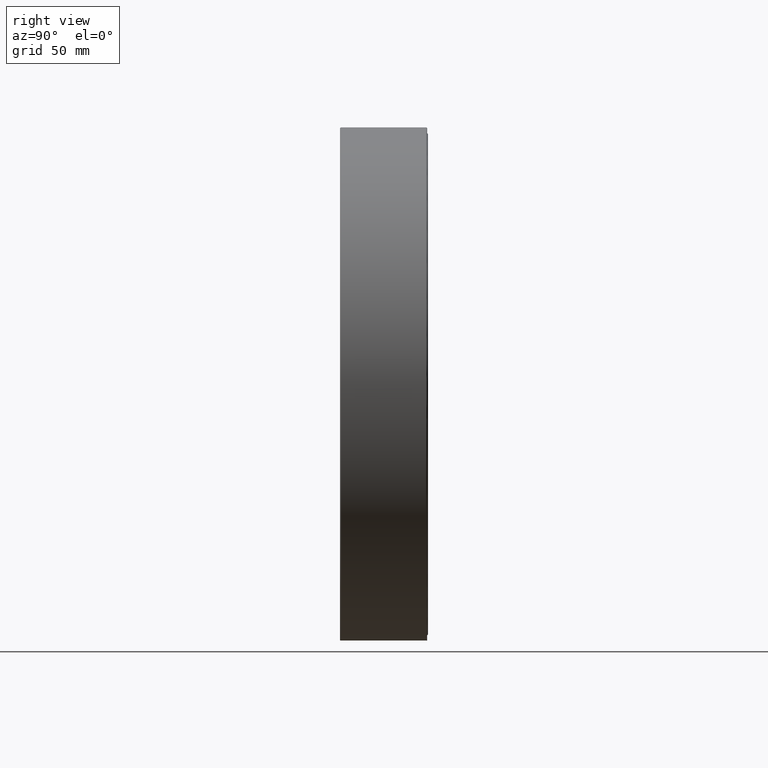
[diagram: clean part render]
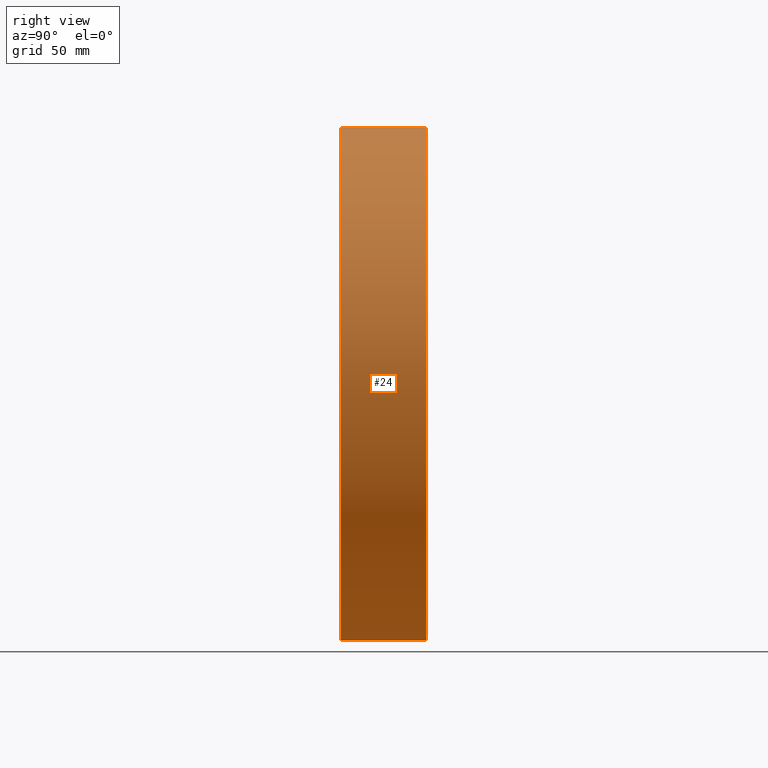
[diagram: same view with one face highlighted and labeled with its STEP entity id]
A machine part, right view. The second image highlights one B-rep face of the part: STEP entity #24.
In plain terms, the highlighted cylindrical surface (bore or boss wall) has radius 111.125 mm, axis along (-0, 1, -0).
Its self-contained STEP definition (entity closure, byte-faithful):
#8 = DIRECTION ( 'NONE',  ( -0.0000000000000000000, 1.000000000000000000, -0.0000000000000000000 ) ) ;
#14 = CARTESIAN_POINT ( 'NONE',  ( 0.0000000000000000000, 0.01499999999999997700, 0.0000000000000000000 ) ) ;
#16 = CIRCLE ( 'NONE', #425, 4.374999999999999100 ) ;
#24 = ADVANCED_FACE ( 'NONE', ( #383, #41 ), #485, .T. ) ;
#41 = FACE_OUTER_BOUND ( 'NONE', #217, .T. ) ;
#53 = ORIENTED_EDGE ( 'NONE', *, *, #505, .T. ) ;
#65 = DIRECTION ( 'NONE',  ( -0.0000000000000000000, 1.000000000000000000, -0.0000000000000000000 ) ) ;
#162 = AXIS2_PLACEMENT_3D ( 'NONE', #358, #586, #178 ) ;
#178 = DIRECTION ( 'NONE',  ( 0.0000000000000000000, 0.0000000000000000000, 1.000000000000000000 ) ) ;
#194 = DIRECTION ( 'NONE',  ( 0.0000000000000000000, 0.0000000000000000000, 1.000000000000000000 ) ) ;
#195 = AXIS2_PLACEMENT_3D ( 'NONE', #328, #8, #194 ) ;
#197 = ORIENTED_EDGE ( 'NONE', *, *, #278, .F. ) ;
#198 = VERTEX_POINT ( 'NONE', #216 ) ;
#216 = CARTESIAN_POINT ( 'NONE',  ( 0.0000000000000000000, 1.464999999999999900, 4.375000000000000000 ) ) ;
#217 = EDGE_LOOP ( 'NONE', ( #53 ) ) ;
#226 = CARTESIAN_POINT ( 'NONE',  ( 0.0000000000000000000, 0.01499999999999997700, 4.374999999999999100 ) ) ;
#258 = CIRCLE ( 'NONE', #195, 4.375000000000000000 ) ;
#278 = EDGE_CURVE ( 'NONE', #198, #198, #258, .T. ) ;
#328 = CARTESIAN_POINT ( 'NONE',  ( 0.0000000000000000000, 1.464999999999999900, 0.0000000000000000000 ) ) ;
#358 = CARTESIAN_POINT ( 'NONE',  ( 0.0000000000000000000, 0.0000000000000000000, 0.0000000000000000000 ) ) ;
#383 = FACE_OUTER_BOUND ( 'NONE', #509, .T. ) ;
#425 = AXIS2_PLACEMENT_3D ( 'NONE', #14, #65, #438 ) ;
#438 = DIRECTION ( 'NONE',  ( 0.0000000000000000000, 0.0000000000000000000, 1.000000000000000000 ) ) ;
#485 = CYLINDRICAL_SURFACE ( 'NONE', #162, 4.375000000000000000 ) ;
#505 = EDGE_CURVE ( 'NONE', #590, #590, #16, .T. ) ;
#509 = EDGE_LOOP ( 'NONE', ( #197 ) ) ;
#586 = DIRECTION ( 'NONE',  ( -0.0000000000000000000, 1.000000000000000000, -0.0000000000000000000 ) ) ;
#590 = VERTEX_POINT ( 'NONE', #226 ) ;